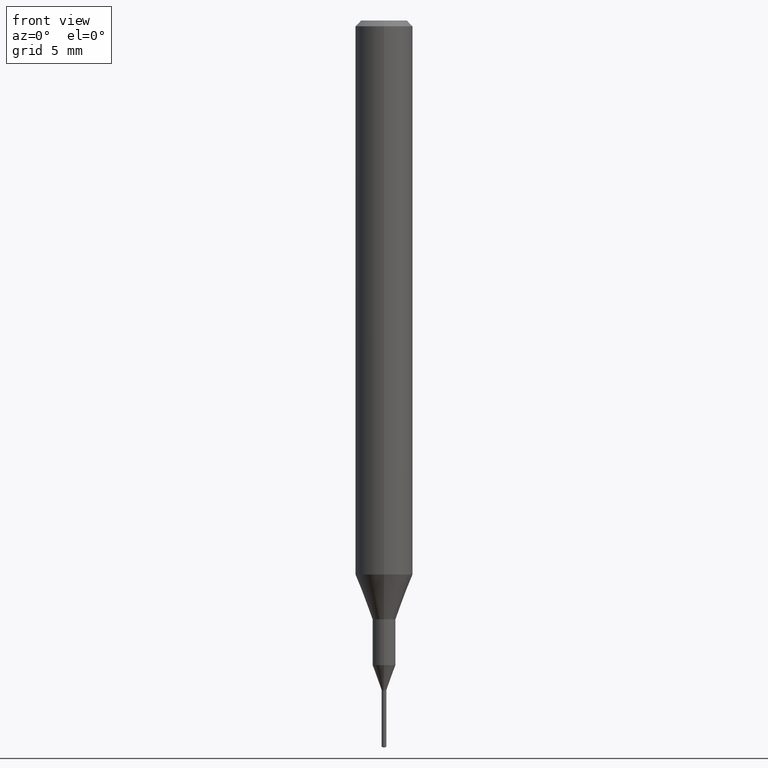
[diagram: clean part render]
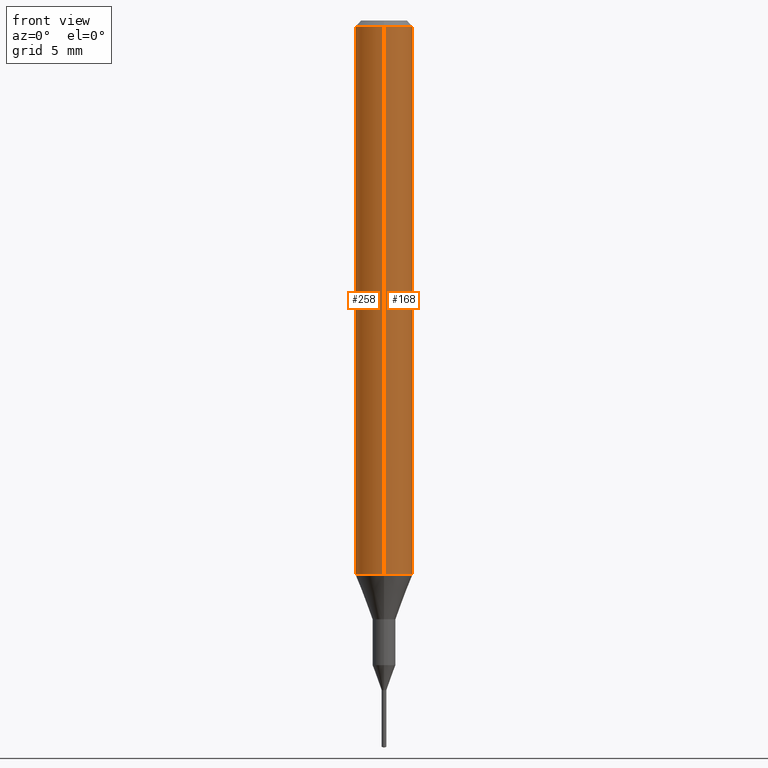
[diagram: same view with one multi-face feature highlighted, each face labeled with its STEP entity id]
A machine part, front view. The highlighted faces form ONE feature: a constant-radius fillet chain: 2 tangent blend faces with common blend radius 1.5 mm. The faces share edges in the B-rep.
Their STEP definitions:
[1] entity #168 (Cylinder):
#128=EDGE_CURVE('',#192,#202,#309,.T.);
#168=ADVANCED_FACE('',(#350),#351,.T.);
#180=EDGE_CURVE('',#246,#192,#365,.T.);
#192=VERTEX_POINT('',#378);
#198=EDGE_CURVE('',#246,#234,#385,.T.);
#202=VERTEX_POINT('',#389);
#234=VERTEX_POINT('',#425);
#240=EDGE_CURVE('',#202,#234,#433,.T.);
#246=VERTEX_POINT('',#439);
#309=CIRCLE('',#505,1.5);
#350=FACE_OUTER_BOUND('',#559,.T.);
#351=CYLINDRICAL_SURFACE('',#560,1.5);
#365=LINE('',#576,#577);
#378=CARTESIAN_POINT('',(0.0,1.5,-28.955));
#385=CIRCLE('',#602,1.5);
#389=CARTESIAN_POINT('',(1.83690953073357E-016,-1.5,-28.955));
#425=CARTESIAN_POINT('',(1.83690953073357E-016,-1.5,-0.300000000000001));
#433=LINE('',#666,#667);
#439=CARTESIAN_POINT('',(0.0,1.5,-0.300000000000001));
#505=AXIS2_PLACEMENT_3D('',#744,#745,#746);
#559=EDGE_LOOP('',(#784,#785,#786,#787));
#560=AXIS2_PLACEMENT_3D('',#788,#789,#790);
#576=CARTESIAN_POINT('',(-1.83690953073357E-016,1.5,-14.6275));
#577=VECTOR('',#808,1.0);
#602=AXIS2_PLACEMENT_3D('',#832,#833,#834);
#666=CARTESIAN_POINT('',(1.83690953073357E-016,-1.5,-14.6275));
#667=VECTOR('',#886,1.0);
#744=CARTESIAN_POINT('',(0.0,0.0,-28.955));
#745=DIRECTION('',(0.0,0.0,-1.0));
#746=DIRECTION('',(0.0,1.0,0.0));
#784=ORIENTED_EDGE('',*,*,#180,.F.);
#785=ORIENTED_EDGE('',*,*,#198,.T.);
#786=ORIENTED_EDGE('',*,*,#240,.F.);
#787=ORIENTED_EDGE('',*,*,#128,.F.);
#788=CARTESIAN_POINT('',(0.0,0.0,-14.6275));
#789=DIRECTION('',(-0.0,-0.0,1.0));
#790=DIRECTION('',(0.0,1.0,0.0));
#808=DIRECTION('',(0.0,0.0,-1.0));
#832=CARTESIAN_POINT('',(0.0,0.0,-0.300000000000001));
#833=DIRECTION('',(0.0,0.0,-1.0));
#834=DIRECTION('',(0.0,1.0,0.0));
#886=DIRECTION('',(-0.0,-0.0,1.0));
[2] entity #258 (Cylinder):
#146=EDGE_CURVE('',#202,#192,#327,.T.);
#180=EDGE_CURVE('',#246,#192,#365,.T.);
#182=EDGE_CURVE('',#234,#246,#367,.T.);
#192=VERTEX_POINT('',#378);
#202=VERTEX_POINT('',#389);
#234=VERTEX_POINT('',#425);
#240=EDGE_CURVE('',#202,#234,#433,.T.);
#246=VERTEX_POINT('',#439);
#258=ADVANCED_FACE('',(#452),#453,.T.);
#327=CIRCLE('',#533,1.5);
#365=LINE('',#576,#577);
#367=CIRCLE('',#580,1.5);
#378=CARTESIAN_POINT('',(0.0,1.5,-28.955));
#389=CARTESIAN_POINT('',(1.83690953073357E-016,-1.5,-28.955));
#425=CARTESIAN_POINT('',(1.83690953073357E-016,-1.5,-0.300000000000001));
#433=LINE('',#666,#667);
#439=CARTESIAN_POINT('',(0.0,1.5,-0.300000000000001));
#452=FACE_OUTER_BOUND('',#689,.T.);
#453=CYLINDRICAL_SURFACE('',#690,1.5);
#533=AXIS2_PLACEMENT_3D('',#764,#765,#766);
#576=CARTESIAN_POINT('',(-1.83690953073357E-016,1.5,-14.6275));
#577=VECTOR('',#808,1.0);
#580=AXIS2_PLACEMENT_3D('',#809,#810,#811);
#666=CARTESIAN_POINT('',(1.83690953073357E-016,-1.5,-14.6275));
#667=VECTOR('',#886,1.0);
#689=EDGE_LOOP('',(#904,#905,#906,#907));
#690=AXIS2_PLACEMENT_3D('',#908,#909,#910);
#764=CARTESIAN_POINT('',(0.0,0.0,-28.955));
#765=DIRECTION('',(0.0,0.0,-1.0));
#766=DIRECTION('',(0.0,1.0,0.0));
#808=DIRECTION('',(0.0,0.0,-1.0));
#809=CARTESIAN_POINT('',(0.0,0.0,-0.300000000000001));
#810=DIRECTION('',(0.0,0.0,-1.0));
#811=DIRECTION('',(0.0,1.0,0.0));
#886=DIRECTION('',(-0.0,-0.0,1.0));
#904=ORIENTED_EDGE('',*,*,#180,.T.);
#905=ORIENTED_EDGE('',*,*,#146,.F.);
#906=ORIENTED_EDGE('',*,*,#240,.T.);
#907=ORIENTED_EDGE('',*,*,#182,.T.);
#908=CARTESIAN_POINT('',(0.0,0.0,-14.6275));
#909=DIRECTION('',(-0.0,-0.0,1.0));
#910=DIRECTION('',(0.0,1.0,0.0));